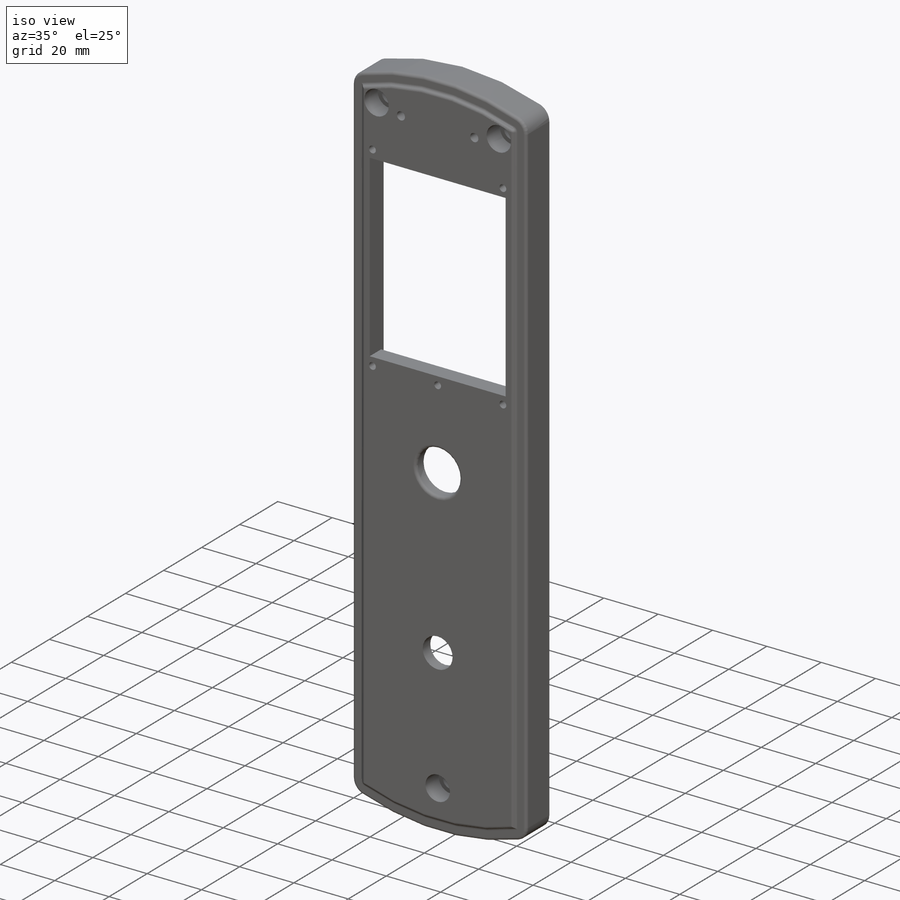
[diagram: iso view]
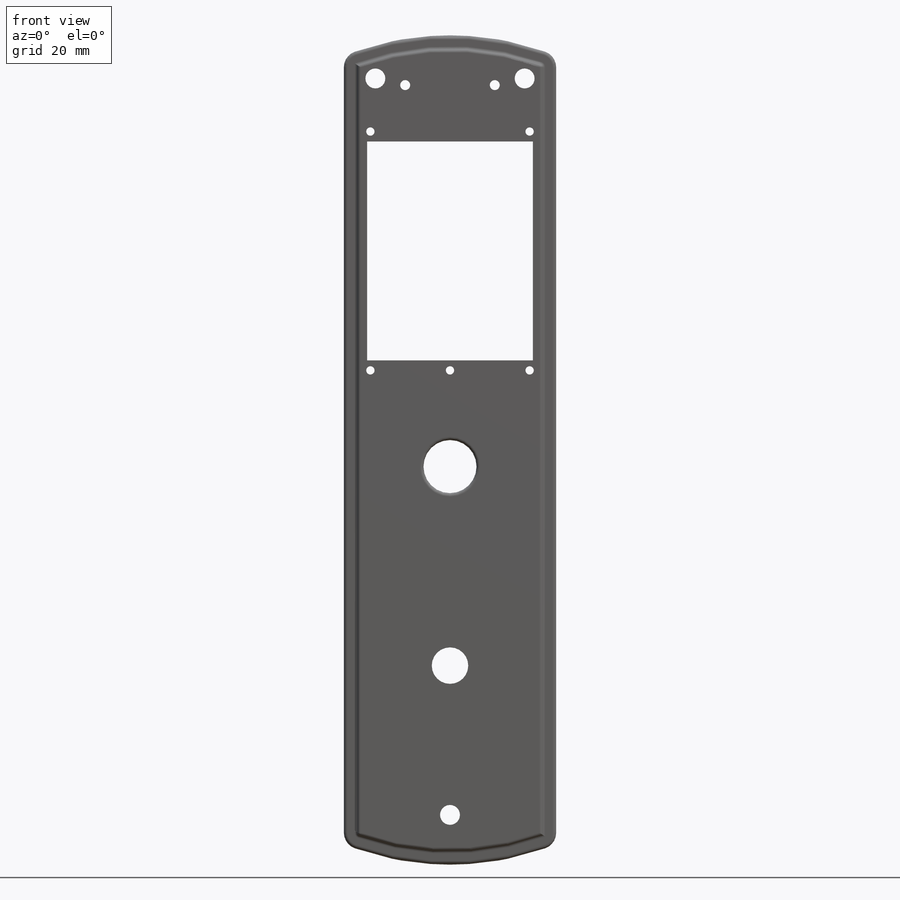
[diagram: front view]
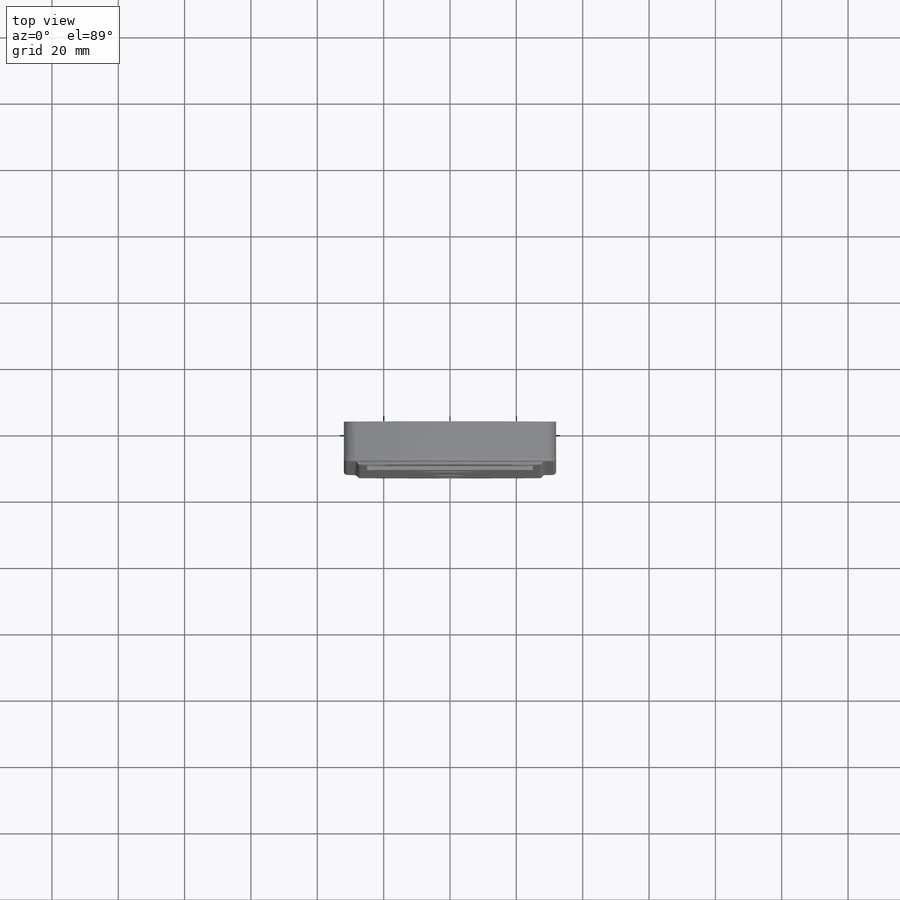
[diagram: top view]
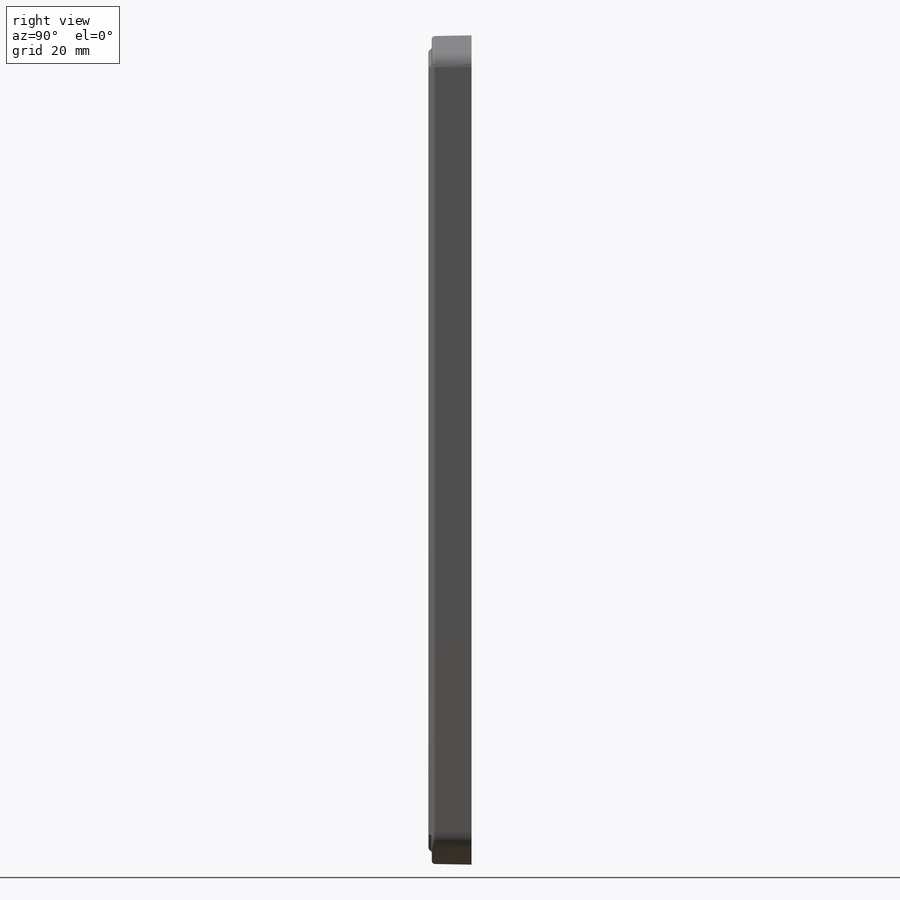
[diagram: right view]
SOLIDWORKS PART (.sldprt)
format: sldprt  version: not decoded by parser v0  size: 4,845,568 bytes
history: native  units: mm
features: sketch x26, mirror x10, extrude x7, thread x7, plane x5, hole x5, fillet x5, cut_extrude x4, pattern_linear x2, material x1, shell x1 + 1 further entry (+12 scaffold rows collapsed)
feature tree (86):
  scaffold x12  (default folders/planes/origin — collapsed)
  material  "Alliage 7079"
  "Corps de surface"
  plane  "Face"
  plane  "Dessus"
  plane  "Droite"
  sketch  "Esquisse1"  dims[c1.D1=~59.970735mm c1.D3=~30.45438mm c1.D4=86.0mm c1.D5=86.0mm c2.D1=120.0mm c2.D2=64.0mm c2.D3=250.0mm]
  extrude  "Base-Extrusion"  Depth=12mm
  shell  "Coque1"  Thickness=3mm
  sketch  "Esquisse35"  dims[c1.D2=~253.807574mm c1.D3=1.0mm c2.D2=68.0mm c2.D1=4.0mm]
  extrude  "Extrusion8"  Depth=1mm
  sketch  "Esquisse7"  dims[c1.D1=8.5mm c1.D2=5.2mm c1.D4=26.0mm c1.D5=21.0mm c2.D4=5.2mm c2.D3=11.0mm c2.D1=11.0mm c2.D2=44.0mm c3.D3=142.0mm c3.D4=128.0mm c3.D5=117.0mm c3.D2=105.0mm c4.D4=9.5mm c4.D6=9.5mm c4.D7=45.0mm]
  plane  "Plan1"  Offset=8mm
  extrude  "Extrusion1"  Depth=6mm
  sketch  "Esquisse13"  dims[D1=16.0mm]
  cut_extrude  "Enlèv. mat.-Extru.4"  [1 undecoded]
  sketch  "Esquisse16"  dims[D1=5.0mm D2=16.85mm]
  extrude  "Extrusion3"  Depth=9mm
  plane  "Plan2"  Offset=130mm
  sketch  "Esquisse20"  dims[D1=50.0mm D2=66.0mm D3=32.0mm D4=66.0mm]
  cut_extrude  "Enlèv. mat.-Extru.6"  [1 undecoded]
  sketch  "Esquisse21"  dims[c1.D1=5.0mm c1.D4=3.0mm c1.D2=25.0mm c1.D3=117.0mm c1.D5=16.0mm c1.D6=117.0mm c2.D5=13.5mm c2.D6=115.0mm c2.D7=23.0mm]
  sketch  "Esquisse46"  dims[D1=1.0mm]
  extrude  "Extrusion11"  Depth=2mm
  sketch  "Esquisse24"  dims[D1=5.0mm D2=27.0mm D3=20.0mm D4=4.0mm]
  extrude  "Extrusion5"  Depth=6mm
  hole  "Trou taraudé M32"  Diameter=2.5mm Depth=7mm
  sketch  "Esquisse26"
  sketch  "Esquisse25"  dims[hole-wizard template sketch: 47 standard entries collapsed; hole parameters kept: c15.Profondeur du trou pour taraudage=7.0mm c15.D3=~14.816244mm c15.Angle de pointe=118.0deg]
  thread  "Filetage de perçage15"  Diameter=6mm  [1 undecoded]
  pattern_linear  "Répétition linéaire8"  Count1=2 Count2=1 Spacing1=80mm Spacing2=50mm
  mirror  "Symétrie1"
  sketch  "Esquisse34"  dims[c1.D1=11.0mm c1.D2=~57.878762mm c1.D3=~57.878762mm c2.D2=60.0mm]
  cut_extrude  "Enlèv. mat.-Extru.8"  [1 undecoded]
  sketch  "Esquisse27"  dims[D1=5.0mm D2=13.0mm]
  extrude  "Extrusion6"  Depth=6mm
  hole  "Trou taraudé M31"  Diameter=2.5mm Depth=8mm
  sketch  "Esquisse29"
  sketch  "Esquisse28"  dims[hole-wizard template sketch: 47 standard entries collapsed; hole parameters kept: c15.Profondeur du trou pour taraudage=8.0mm c15.D3=~14.816244mm c15.Angle de pointe=118.0deg]
  thread  "Filetage de perçage16"  Diameter=6mm  [1 undecoded]
  pattern_linear  "Répétition linéaire9"  Count1=2 Count2=1 Spacing1=26mm Spacing2=50mm
  hole  "Trou taraudé M33"  [1 undecoded]
  sketch  "Esquisse37"  dims[D1=3.0mm D2=24.0mm D3=24.0mm D4=29.0mm]
  thread  "Filetage de perçage12"  Diameter=3mm  [1 undecoded]
  thread  "Filetage de perçage13"  Diameter=3mm  [1 undecoded]
  thread  "Filetage de perçage14"  Diameter=3mm  [1 undecoded]
  sketch  "Esquisse36"  dims[hole-wizard template sketch: 60 standard entries collapsed; hole parameters kept: c18.Profondeur du trou pour taraudage jusqu'au prochain=4.0mm]
  hole  "Trou taraudé M34"  Diameter=2.5mm Depth=4mm
  sketch  "Esquisse40"  dims[D1=3.0mm D2=~48.837546mm]
  sketch  "Esquisse39"  dims[hole-wizard template sketch: 60 standard entries collapsed; hole parameters kept: c18.Profondeur du trou pour taraudage jusqu'au prochain=4.0mm]
  thread  "Filetage de perçage7"  Diameter=3mm  [1 undecoded]
  thread  "Filetage de perçage8"  Diameter=3mm  [1 undecoded]
  fillet  "Congé1"  Radius=5mm
  mirror  "Congé2"
  mirror  "Congé3"
  mirror  "Congé4"
  mirror  "Congé6"
  mirror  "Congé7"
  mirror  "Congé8"
  mirror  "Congé9"
  mirror  "Congé10"
  mirror  "Congé11"
  cut_extrude  "Enlèv. mat.-Extru.9"  [1 undecoded]
  hole  "Chambrage pour vis à tête hexagonale M51"  Diameter=6mm Depth=13mm
  sketch  "Esquisse53"
  sketch  "Esquisse52"  dims[hole-wizard template sketch: 41 standard entries collapsed; hole parameters kept: c12.Diamètre du perçage jusqu'au prochain=6.0mm c12.Profondeur du perçage jusqu'au prochain=13.0mm c12.Diamètre du chambrage=9.0mm c12.Profondeur du chambrage=7.0mm]
  sketch  "Esquisse54"  dims[D1=3.0mm]
  sketch  "Esquisse55"
  fillet  "Nervure2"  Radius=3mm
  sketch  "Esquisse57"
  fillet  "Nervure3"  Radius=3mm
  sketch  "Esquisse58"
  fillet  "Nervure4"  Radius=3mm
  sketch  "Esquisse59"
  fillet  "Nervure5"  Radius=3mm
decode coverage: 45 of 67 modeling features carry decoded parameters; 1 rows unclassified (native names shown)
note: ~ marks probable driven/reference dimensions
note: 12 parameter values undecoded
summary: no parameter record found for 5 features; Diameter pulled from absorbed wizard sketch
note: suppression state not decoded; provenance and decode notes live in map.json
